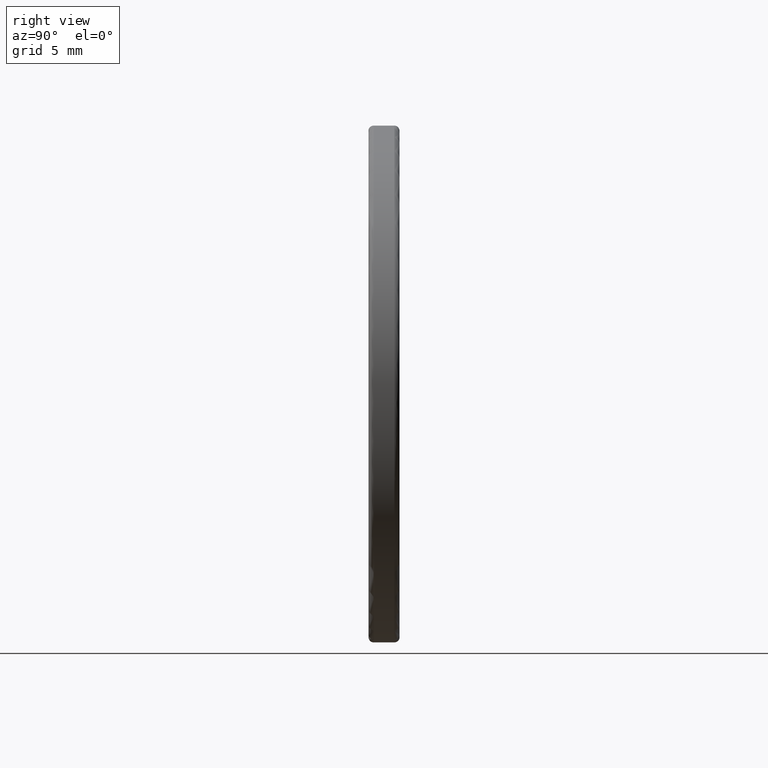
[diagram: clean part render]
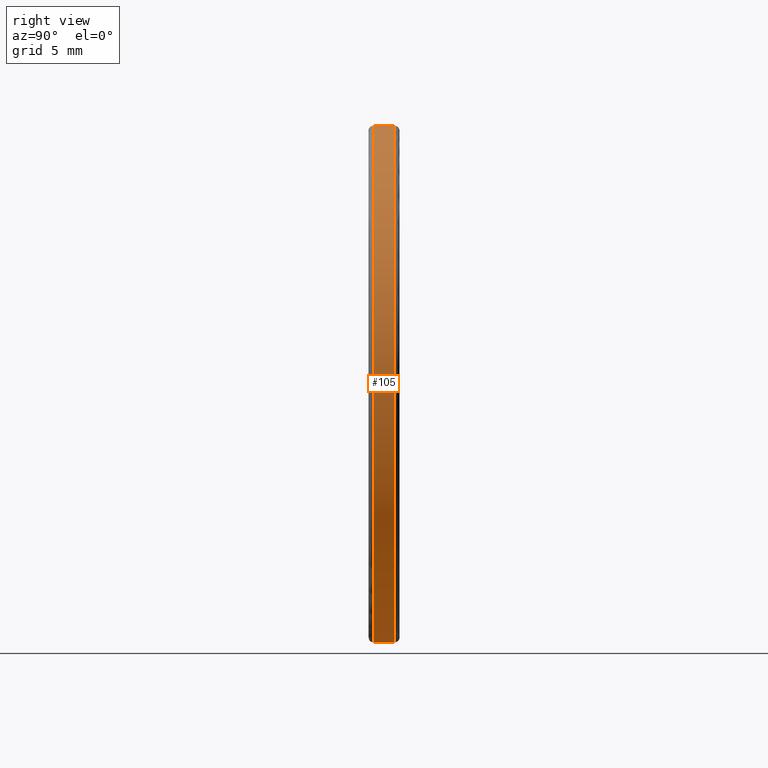
[diagram: same view with one face highlighted and labeled with its STEP entity id]
A machine part, right view. The second image highlights one B-rep face of the part: STEP entity #105.
In plain terms, the highlighted cylindrical surface (partial cylindrical patch) has radius 12.5 mm, axis along (-0, -1, -0).
Its self-contained STEP definition (entity closure, byte-faithful):
#8 = CARTESIAN_POINT ( 'NONE',  ( -4.682026255059962949, -0.8449759769982747581, 37.50000000000000711 ) ) ;
#22 = AXIS2_PLACEMENT_3D ( 'NONE', #26, #375, #24 ) ;
#24 = DIRECTION ( 'NONE',  ( 0.0000000000000000000, 0.0000000000000000000, -1.000000000000000000 ) ) ;
#26 = CARTESIAN_POINT ( 'NONE',  ( -4.682026255059964726, -0.8449759769982747581, 25.00000000000000000 ) ) ;
#28 = DIRECTION ( 'NONE',  ( 0.0000000000000000000, 1.000000000000000000, 0.0000000000000000000 ) ) ;
#43 = VERTEX_POINT ( 'NONE', #209 ) ;
#50 = DIRECTION ( 'NONE',  ( -0.0000000000000000000, -1.000000000000000000, -0.0000000000000000000 ) ) ;
#57 = DIRECTION ( 'NONE',  ( -0.0000000000000000000, -1.000000000000000000, -0.0000000000000000000 ) ) ;
#67 = EDGE_CURVE ( 'NONE', #284, #207, #134, .T. ) ;
#84 = EDGE_CURVE ( 'NONE', #284, #161, #97, .T. ) ;
#97 = CIRCLE ( 'NONE', #457, 12.50000000000000355 ) ;
#105 = ADVANCED_FACE ( 'NONE', ( #291 ), #371, .T. ) ;
#134 = LINE ( 'NONE', #221, #438 ) ;
#147 = VECTOR ( 'NONE', #50, 1000.000000000000000 ) ;
#150 = EDGE_CURVE ( 'NONE', #43, #207, #428, .T. ) ;
#161 = VERTEX_POINT ( 'NONE', #337 ) ;
#185 = CARTESIAN_POINT ( 'NONE',  ( -4.682026255059964726, -2.094975976998274536, 12.50000000000000000 ) ) ;
#202 = EDGE_LOOP ( 'NONE', ( #487, #442, #364, #367 ) ) ;
#205 = AXIS2_PLACEMENT_3D ( 'NONE', #460, #28, #379 ) ;
#207 = VERTEX_POINT ( 'NONE', #185 ) ;
#209 = CARTESIAN_POINT ( 'NONE',  ( -4.682026255059962949, -2.094975976998274536, 37.50000000000000711 ) ) ;
#221 = CARTESIAN_POINT ( 'NONE',  ( -4.682026255059964726, -0.8449759769982747581, 12.50000000000000000 ) ) ;
#223 = CARTESIAN_POINT ( 'NONE',  ( -4.682026255059962949, -1.094975976998274758, 12.50000000000000000 ) ) ;
#252 = DIRECTION ( 'NONE',  ( -0.0000000000000000000, -1.000000000000000000, -0.0000000000000000000 ) ) ;
#284 = VERTEX_POINT ( 'NONE', #223 ) ;
#291 = FACE_OUTER_BOUND ( 'NONE', #202, .T. ) ;
#299 = CARTESIAN_POINT ( 'NONE',  ( -4.682026255059964726, -1.094975976998274758, 25.00000000000000000 ) ) ;
#325 = LINE ( 'NONE', #8, #147 ) ;
#337 = CARTESIAN_POINT ( 'NONE',  ( -4.682026255059964726, -1.094975976998274758, 37.50000000000000711 ) ) ;
#364 = ORIENTED_EDGE ( 'NONE', *, *, #150, .T. ) ;
#367 = ORIENTED_EDGE ( 'NONE', *, *, #67, .F. ) ;
#371 = CYLINDRICAL_SURFACE ( 'NONE', #22, 12.50000000000000000 ) ;
#375 = DIRECTION ( 'NONE',  ( -0.0000000000000000000, -1.000000000000000000, -0.0000000000000000000 ) ) ;
#379 = DIRECTION ( 'NONE',  ( 0.0000000000000000000, 0.0000000000000000000, 1.000000000000000000 ) ) ;
#427 = EDGE_CURVE ( 'NONE', #161, #43, #325, .T. ) ;
#428 = CIRCLE ( 'NONE', #205, 12.50000000000000355 ) ;
#438 = VECTOR ( 'NONE', #252, 1000.000000000000000 ) ;
#442 = ORIENTED_EDGE ( 'NONE', *, *, #427, .T. ) ;
#457 = AXIS2_PLACEMENT_3D ( 'NONE', #299, #57, #497 ) ;
#460 = CARTESIAN_POINT ( 'NONE',  ( -4.682026255059964726, -2.094975976998274536, 25.00000000000000000 ) ) ;
#487 = ORIENTED_EDGE ( 'NONE', *, *, #84, .T. ) ;
#497 = DIRECTION ( 'NONE',  ( 0.0000000000000000000, 0.0000000000000000000, 1.000000000000000000 ) ) ;